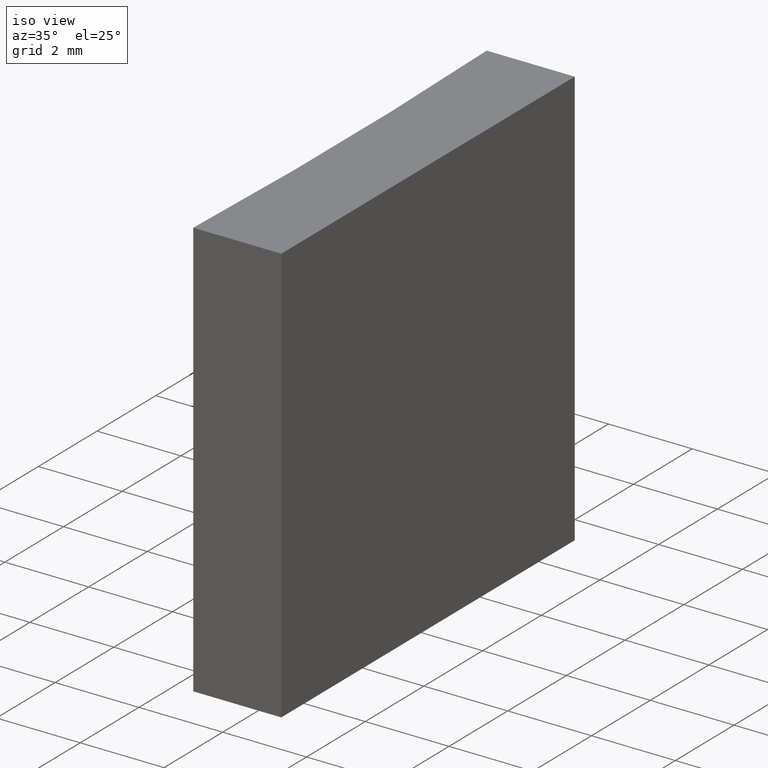
[diagram: clean part render]
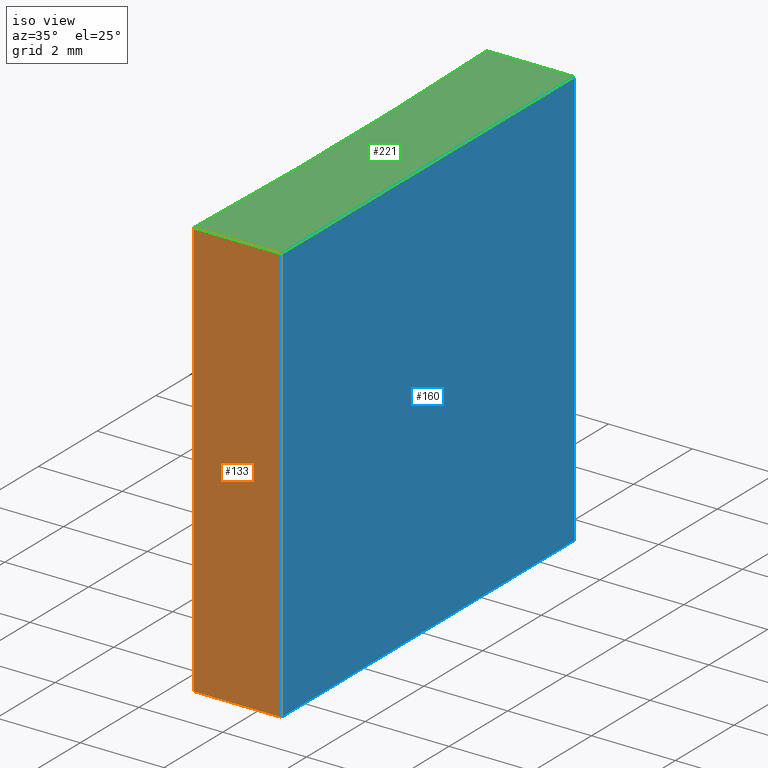
[diagram: same view with three faces highlighted in distinct colors, each labeled with its STEP entity id]
A machine part, iso view with three faces highlighted in distinct colors.
Their STEP definitions:

[orange] entity #133 — the highlighted planar face has unit normal (0, 1, -0).
#1 = DIRECTION ( 'NONE',  ( -0.000000000000000000, -0.000000000000000000, -1.000000000000000000 ) ) ;
#3 = CARTESIAN_POINT ( 'NONE',  ( 96.71095150400097396, -65.16139251231673768, 0.000000000000000000 ) ) ;
#14 = CARTESIAN_POINT ( 'NONE',  ( 96.71095150400097396, -65.16139251231673768, 10.00000000000000000 ) ) ;
#20 = ORIENTED_EDGE ( 'NONE', *, *, #227, .T. ) ;
#23 = AXIS2_PLACEMENT_3D ( 'NONE', #173, #69, #52 ) ;
#27 = VERTEX_POINT ( 'NONE', #159 ) ;
#28 = LINE ( 'NONE', #214, #228 ) ;
#32 = CARTESIAN_POINT ( 'NONE',  ( 96.71095150400097396, -65.16139251231673768, 0.000000000000000000 ) ) ;
#33 = VECTOR ( 'NONE', #1, 1000.000000000000000 ) ;
#40 = ORIENTED_EDGE ( 'NONE', *, *, #175, .T. ) ;
#49 = DIRECTION ( 'NONE',  ( -0.000000000000000000, -0.000000000000000000, -1.000000000000000000 ) ) ;
#52 = DIRECTION ( 'NONE',  ( -1.000000000000000000, 6.608470384673492648E-15, 0.000000000000000000 ) ) ;
#55 = PLANE ( 'NONE',  #23 ) ;
#67 = ORIENTED_EDGE ( 'NONE', *, *, #82, .F. ) ;
#69 = DIRECTION ( 'NONE',  ( 6.608470384673492648E-15, 1.000000000000000000, -0.000000000000000000 ) ) ;
#70 = VERTEX_POINT ( 'NONE', #32 ) ;
#73 = DIRECTION ( 'NONE',  ( 1.000000000000000000, -6.608470384673492648E-15, 0.000000000000000000 ) ) ;
#82 = EDGE_CURVE ( 'NONE', #27, #169, #102, .T. ) ;
#91 = CARTESIAN_POINT ( 'NONE',  ( 98.81095150400098248, -65.16139251231675189, 0.000000000000000000 ) ) ;
#102 = LINE ( 'NONE', #14, #125 ) ;
#103 = EDGE_CURVE ( 'NONE', #169, #112, #28, .T. ) ;
#108 = CARTESIAN_POINT ( 'NONE',  ( 98.81095150400098248, -65.16139251231675189, 10.00000000000000000 ) ) ;
#112 = VERTEX_POINT ( 'NONE', #91 ) ;
#125 = VECTOR ( 'NONE', #234, 1000.000000000000000 ) ;
#133 = ADVANCED_FACE ( 'NONE', ( #235 ), #55, .F. ) ;
#137 = ORIENTED_EDGE ( 'NONE', *, *, #103, .F. ) ;
#149 = LINE ( 'NONE', #3, #233 ) ;
#159 = CARTESIAN_POINT ( 'NONE',  ( 96.71095150400097396, -65.16139251231673768, 10.00000000000000000 ) ) ;
#169 = VERTEX_POINT ( 'NONE', #108 ) ;
#173 = CARTESIAN_POINT ( 'NONE',  ( 96.71095150400097396, -65.16139251231673768, 10.00000000000000000 ) ) ;
#175 = EDGE_CURVE ( 'NONE', #27, #70, #177, .T. ) ;
#177 = LINE ( 'NONE', #213, #33 ) ;
#205 = EDGE_LOOP ( 'NONE', ( #20, #137, #67, #40 ) ) ;
#213 = CARTESIAN_POINT ( 'NONE',  ( 96.71095150400097396, -65.16139251231673768, 10.00000000000000000 ) ) ;
#214 = CARTESIAN_POINT ( 'NONE',  ( 98.81095150400098248, -65.16139251231675189, 10.00000000000000000 ) ) ;
#227 = EDGE_CURVE ( 'NONE', #70, #112, #149, .T. ) ;
#228 = VECTOR ( 'NONE', #49, 1000.000000000000000 ) ;
#233 = VECTOR ( 'NONE', #73, 1000.000000000000000 ) ;
#234 = DIRECTION ( 'NONE',  ( 1.000000000000000000, -6.608470384673492648E-15, 0.000000000000000000 ) ) ;
#235 = FACE_OUTER_BOUND ( 'NONE', #205, .T. ) ;

[blue] entity #160 — the highlighted planar face has unit normal (-1, -0, 0).
#9 = CARTESIAN_POINT ( 'NONE',  ( 98.81095150400096827, -55.16139251231674479, 10.00000000000000000 ) ) ;
#10 = ORIENTED_EDGE ( 'NONE', *, *, #53, .F. ) ;
#11 = CARTESIAN_POINT ( 'NONE',  ( 98.81095150400096827, -55.16139251231674479, 0.000000000000000000 ) ) ;
#28 = LINE ( 'NONE', #214, #228 ) ;
#34 = DIRECTION ( 'NONE',  ( 1.387778780781444689E-15, -1.000000000000000000, 0.000000000000000000 ) ) ;
#46 = EDGE_LOOP ( 'NONE', ( #153, #10, #229, #76 ) ) ;
#48 = EDGE_CURVE ( 'NONE', #112, #96, #195, .T. ) ;
#49 = DIRECTION ( 'NONE',  ( -0.000000000000000000, -0.000000000000000000, -1.000000000000000000 ) ) ;
#53 = EDGE_CURVE ( 'NONE', #124, #96, #230, .T. ) ;
#71 = VECTOR ( 'NONE', #146, 1000.000000000000000 ) ;
#76 = ORIENTED_EDGE ( 'NONE', *, *, #103, .T. ) ;
#85 = DIRECTION ( 'NONE',  ( -1.387778780781444492E-15, 1.000000000000000000, -0.000000000000000000 ) ) ;
#91 = CARTESIAN_POINT ( 'NONE',  ( 98.81095150400098248, -65.16139251231675189, 0.000000000000000000 ) ) ;
#96 = VERTEX_POINT ( 'NONE', #232 ) ;
#100 = CARTESIAN_POINT ( 'NONE',  ( 98.81095150400096827, -55.16139251231674479, 10.00000000000000000 ) ) ;
#101 = VECTOR ( 'NONE', #85, 1000.000000000000000 ) ;
#103 = EDGE_CURVE ( 'NONE', #169, #112, #28, .T. ) ;
#104 = CARTESIAN_POINT ( 'NONE',  ( 98.81095150400096827, -55.16139251231674479, 10.00000000000000000 ) ) ;
#108 = CARTESIAN_POINT ( 'NONE',  ( 98.81095150400098248, -65.16139251231675189, 10.00000000000000000 ) ) ;
#112 = VERTEX_POINT ( 'NONE', #91 ) ;
#122 = LINE ( 'NONE', #104, #101 ) ;
#124 = VERTEX_POINT ( 'NONE', #100 ) ;
#134 = VECTOR ( 'NONE', #162, 1000.000000000000000 ) ;
#139 = DIRECTION ( 'NONE',  ( -1.000000000000000000, -1.387778780781444689E-15, 0.000000000000000000 ) ) ;
#140 = AXIS2_PLACEMENT_3D ( 'NONE', #197, #139, #34 ) ;
#146 = DIRECTION ( 'NONE',  ( -1.387778780781444492E-15, 1.000000000000000000, -0.000000000000000000 ) ) ;
#153 = ORIENTED_EDGE ( 'NONE', *, *, #48, .T. ) ;
#157 = EDGE_CURVE ( 'NONE', #169, #124, #122, .T. ) ;
#158 = PLANE ( 'NONE',  #140 ) ;
#160 = ADVANCED_FACE ( 'NONE', ( #216 ), #158, .F. ) ;
#162 = DIRECTION ( 'NONE',  ( -0.000000000000000000, -0.000000000000000000, -1.000000000000000000 ) ) ;
#169 = VERTEX_POINT ( 'NONE', #108 ) ;
#195 = LINE ( 'NONE', #11, #71 ) ;
#197 = CARTESIAN_POINT ( 'NONE',  ( 98.81095150400096827, -55.16139251231674479, 10.00000000000000000 ) ) ;
#214 = CARTESIAN_POINT ( 'NONE',  ( 98.81095150400098248, -65.16139251231675189, 10.00000000000000000 ) ) ;
#216 = FACE_OUTER_BOUND ( 'NONE', #46, .T. ) ;
#228 = VECTOR ( 'NONE', #49, 1000.000000000000000 ) ;
#229 = ORIENTED_EDGE ( 'NONE', *, *, #157, .F. ) ;
#230 = LINE ( 'NONE', #9, #134 ) ;
#232 = CARTESIAN_POINT ( 'NONE',  ( 98.81095150400096827, -55.16139251231674479, 0.000000000000000000 ) ) ;

[green] entity #221 — the highlighted planar face has unit normal (0, 0, 1).
#2 = DIRECTION ( 'NONE',  ( 0.000000000000000000, 0.000000000000000000, 1.000000000000000000 ) ) ;
#4 = EDGE_CURVE ( 'NONE', #154, #27, #97, .T. ) ;
#5 = EDGE_LOOP ( 'NONE', ( #62, #135, #131, #185 ) ) ;
#14 = CARTESIAN_POINT ( 'NONE',  ( 96.71095150400097396, -65.16139251231673768, 10.00000000000000000 ) ) ;
#27 = VERTEX_POINT ( 'NONE', #159 ) ;
#58 = PLANE ( 'NONE',  #155 ) ;
#60 = FACE_OUTER_BOUND ( 'NONE', #5, .T. ) ;
#62 = ORIENTED_EDGE ( 'NONE', *, *, #4, .T. ) ;
#82 = EDGE_CURVE ( 'NONE', #27, #169, #102, .T. ) ;
#85 = DIRECTION ( 'NONE',  ( -1.387778780781444492E-15, 1.000000000000000000, -0.000000000000000000 ) ) ;
#87 = DIRECTION ( 'NONE',  ( -0.000000000000000000, -0.000000000000000000, -1.000000000000000000 ) ) ;
#94 = DIRECTION ( 'NONE',  ( 1.000000000000000000, 0.000000000000000000, -0.000000000000000000 ) ) ;
#97 = CIRCLE ( 'NONE', #210, 129.2500000000000284 ) ;
#100 = CARTESIAN_POINT ( 'NONE',  ( 98.81095150400096827, -55.16139251231674479, 10.00000000000000000 ) ) ;
#101 = VECTOR ( 'NONE', #85, 1000.000000000000000 ) ;
#102 = LINE ( 'NONE', #14, #125 ) ;
#104 = CARTESIAN_POINT ( 'NONE',  ( 98.81095150400096827, -55.16139251231674479, 10.00000000000000000 ) ) ;
#108 = CARTESIAN_POINT ( 'NONE',  ( 98.81095150400098248, -65.16139251231675189, 10.00000000000000000 ) ) ;
#115 = EDGE_CURVE ( 'NONE', #124, #154, #120, .T. ) ;
#120 = LINE ( 'NONE', #121, #201 ) ;
#121 = CARTESIAN_POINT ( 'NONE',  ( 96.71095150400097396, -55.16139251231674479, 10.00000000000000000 ) ) ;
#122 = LINE ( 'NONE', #104, #101 ) ;
#124 = VERTEX_POINT ( 'NONE', #100 ) ;
#125 = VECTOR ( 'NONE', #234, 1000.000000000000000 ) ;
#126 = CARTESIAN_POINT ( 'NONE',  ( -32.44230048757687257, -60.16139251231674479, 10.00000000000000000 ) ) ;
#131 = ORIENTED_EDGE ( 'NONE', *, *, #157, .T. ) ;
#135 = ORIENTED_EDGE ( 'NONE', *, *, #82, .T. ) ;
#142 = DIRECTION ( 'NONE',  ( 1.000000000000000000, 0.000000000000000000, 0.000000000000000000 ) ) ;
#144 = CARTESIAN_POINT ( 'NONE',  ( 96.71095150400097396, -55.16139251231674479, 10.00000000000000000 ) ) ;
#154 = VERTEX_POINT ( 'NONE', #144 ) ;
#155 = AXIS2_PLACEMENT_3D ( 'NONE', #126, #2, #94 ) ;
#157 = EDGE_CURVE ( 'NONE', #169, #124, #122, .T. ) ;
#159 = CARTESIAN_POINT ( 'NONE',  ( 96.71095150400097396, -65.16139251231673768, 10.00000000000000000 ) ) ;
#163 = CARTESIAN_POINT ( 'NONE',  ( -32.44230048757687257, -60.16139251231674479, 10.00000000000000000 ) ) ;
#169 = VERTEX_POINT ( 'NONE', #108 ) ;
#185 = ORIENTED_EDGE ( 'NONE', *, *, #115, .T. ) ;
#193 = DIRECTION ( 'NONE',  ( -1.000000000000000000, -0.000000000000000000, -0.000000000000000000 ) ) ;
#201 = VECTOR ( 'NONE', #193, 1000.000000000000000 ) ;
#210 = AXIS2_PLACEMENT_3D ( 'NONE', #163, #87, #142 ) ;
#221 = ADVANCED_FACE ( 'NONE', ( #60 ), #58, .T. ) ;
#234 = DIRECTION ( 'NONE',  ( 1.000000000000000000, -6.608470384673492648E-15, 0.000000000000000000 ) ) ;